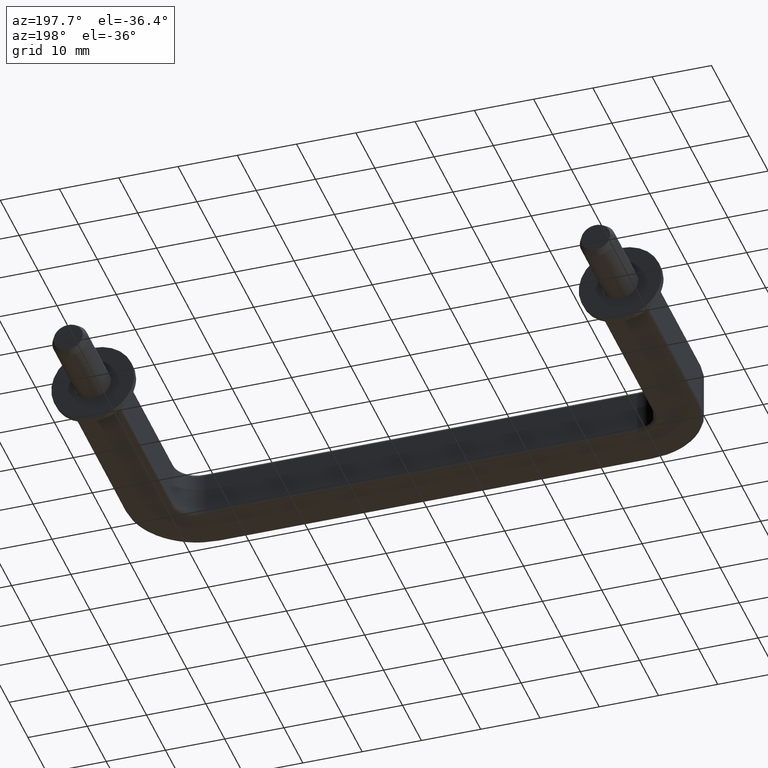
[diagram: clean part render]
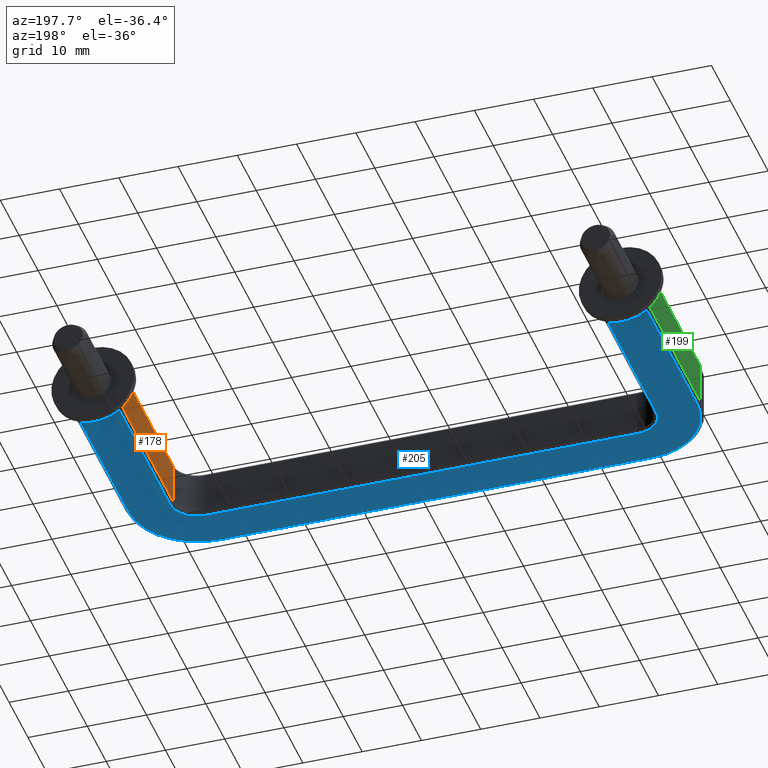
[diagram: same view with three faces highlighted in distinct colors, each labeled with its STEP entity id]
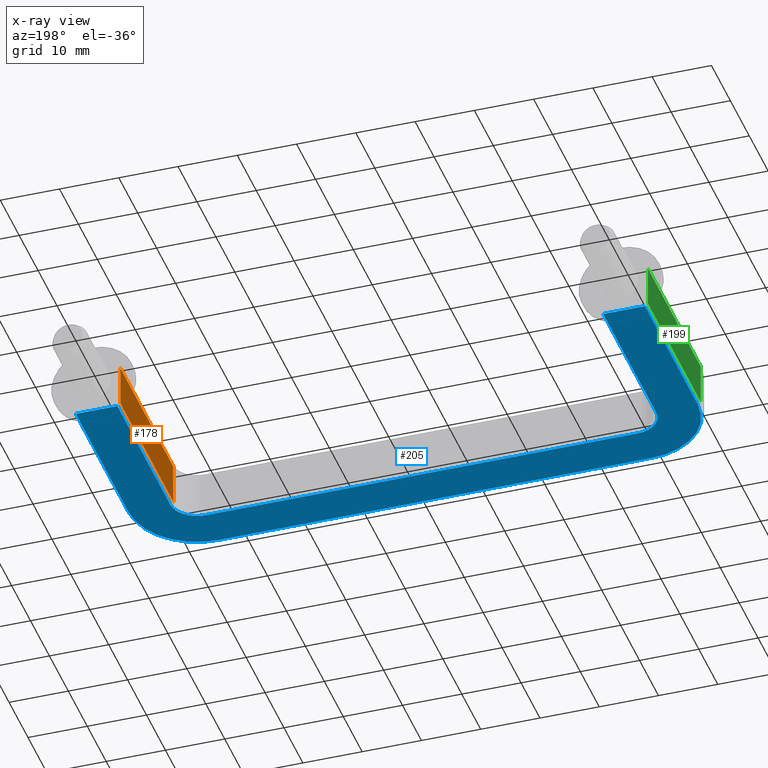
[diagram: x-ray of the same camera — body ghosted, the three highlighted faces saturated]
A machine part, auxiliary view with three faces highlighted in distinct colors.
The next image is the same camera in x-ray (body ghosted, the three faces saturated) — at least one of them is partly hidden behind the body in this view.
Their STEP definitions:

[orange] entity #178 — the highlighted planar face has unit normal (-1, 0, 0).
#178=ADVANCED_FACE('',(#328),#327,.T.);
#327=PLANE('',#769);
#328=FACE_OUTER_BOUND('',#770,.T.);
#766=CARTESIAN_POINT('',(4.05000000000E+01,4.20000000000E+00,1.22000000000E+01));
#767=DIRECTION('',(-1.00000000000E+00,0.00000000000E+00,0.00000000000E+00));
#768=DIRECTION('',(0.00000000000E+00,-1.00000000000E+00,0.00000000000E+00));
#769=AXIS2_PLACEMENT_3D('',#766,#767,#768);
#770=EDGE_LOOP('',(#1267,#1268,#1269,#1270));
#1267=ORIENTED_EDGE('',*,*,#1482,.T.);
#1268=ORIENTED_EDGE('',*,*,#1484,.F.);
#1269=ORIENTED_EDGE('',*,*,#1485,.F.);
#1270=ORIENTED_EDGE('',*,*,#1486,.T.);
#1482=EDGE_CURVE('',#1782,#1775,#1783,.T.);
#1484=EDGE_CURVE('',#1795,#1775,#1796,.T.);
#1485=EDGE_CURVE('',#1802,#1795,#1803,.T.);
#1486=EDGE_CURVE('',#1802,#1782,#1809,.T.);
#1775=VERTEX_POINT('',#2495);
#1782=VERTEX_POINT('',#2500);
#1783=LINE('',#2501,#2502);
#1795=VERTEX_POINT('',#2508);
#1796=LINE('',#2509,#2510);
#1802=VERTEX_POINT('',#2512);
#1803=LINE('',#2513,#2514);
#1809=LINE('',#2516,#2517);
#2495=CARTESIAN_POINT('',(4.05000000000E+01,3.50000000000E+00,1.50000000000E+01));
#2500=CARTESIAN_POINT('',(4.05000000000E+01,3.50000000000E+00,4.30000000000E+01));
#2501=CARTESIAN_POINT('',(4.05000000000E+01,3.50000000000E+00,4.30000000000E+01));
#2502=VECTOR('',#2503,2.80000000000E+01);
#2503=DIRECTION('',(0.00000000000E+00,0.00000000000E+00,-1.00000000000E+00));
#2508=CARTESIAN_POINT('',(4.05000000000E+01,-3.50000000000E+00,1.50000000000E+01));
#2509=CARTESIAN_POINT('',(4.05000000000E+01,-3.50000000000E+00,1.50000000000E+01));
#2510=VECTOR('',#2511,7.00000000000E+00);
#2511=DIRECTION('',(0.00000000000E+00,1.00000000000E+00,0.00000000000E+00));
#2512=CARTESIAN_POINT('',(4.05000000000E+01,-3.50000000000E+00,4.30000000000E+01));
#2513=CARTESIAN_POINT('',(4.05000000000E+01,-3.50000000000E+00,4.30000000000E+01));
#2514=VECTOR('',#2515,2.80000000000E+01);
#2515=DIRECTION('',(0.00000000000E+00,0.00000000000E+00,-1.00000000000E+00));
#2516=CARTESIAN_POINT('',(4.05000000000E+01,-3.50000000000E+00,4.30000000000E+01));
#2517=VECTOR('',#2518,7.00000000000E+00);
#2518=DIRECTION('',(0.00000000000E+00,1.00000000000E+00,0.00000000000E+00));

[blue] entity #205 — the highlighted planar face has unit normal (0, 0, -1).
#205=ADVANCED_FACE('',(#598),#597,.T.);
#597=PLANE('',#1152);
#598=FACE_OUTER_BOUND('',#1153,.T.);
#1149=CARTESIAN_POINT('',(-5.76000000000E+01,-4.00000000000E+00,1.10500000000E+01));
#1150=DIRECTION('',(0.00000000000E+00,-1.00000000000E+00,0.00000000000E+00));
#1151=DIRECTION('',(1.00000000000E+00,0.00000000000E+00,0.00000000000E+00));
#1152=AXIS2_PLACEMENT_3D('',#1149,#1150,#1151);
#1153=EDGE_LOOP('',(#1383,#1384,#1385,#1386,#1387,#1388,#1389,#1390,#1391,#1392,#1393,#1394));
#1383=ORIENTED_EDGE('',*,*,#1547,.T.);
#1384=ORIENTED_EDGE('',*,*,#1531,.T.);
#1385=ORIENTED_EDGE('',*,*,#1517,.T.);
#1386=ORIENTED_EDGE('',*,*,#1503,.T.);
#1387=ORIENTED_EDGE('',*,*,#1488,.T.);
#1388=ORIENTED_EDGE('',*,*,#1549,.F.);
#1389=ORIENTED_EDGE('',*,*,#1490,.F.);
#1390=ORIENTED_EDGE('',*,*,#1505,.F.);
#1391=ORIENTED_EDGE('',*,*,#1519,.F.);
#1392=ORIENTED_EDGE('',*,*,#1533,.F.);
#1393=ORIENTED_EDGE('',*,*,#1550,.F.);
#1394=ORIENTED_EDGE('',*,*,#1551,.T.);
#1488=EDGE_CURVE('',#1822,#1815,#1823,.T.);
#1490=EDGE_CURVE('',#1835,#1836,#1837,.T.);
#1503=EDGE_CURVE('',#1921,#1822,#1922,.T.);
#1505=EDGE_CURVE('',#1934,#1835,#1935,.T.);
#1517=EDGE_CURVE('',#2013,#1921,#2014,.T.);
#1519=EDGE_CURVE('',#2026,#1934,#2027,.T.);
#1531=EDGE_CURVE('',#2105,#2013,#2106,.T.);
#1533=EDGE_CURVE('',#2118,#2026,#2119,.T.);
#1547=EDGE_CURVE('',#2209,#2105,#2210,.T.);
#1549=EDGE_CURVE('',#1836,#1815,#2222,.T.);
#1550=EDGE_CURVE('',#2228,#2118,#2229,.T.);
#1551=EDGE_CURVE('',#2228,#2209,#2235,.T.);
#1815=VERTEX_POINT('',#2519);
#1822=VERTEX_POINT('',#2524);
#1823=LINE('',#2525,#2526);
#1835=VERTEX_POINT('',#2532);
#1836=VERTEX_POINT('',#2533);
#1837=LINE('',#2534,#2535);
#1921=VERTEX_POINT('',#2589);
#1922=CIRCLE('',#2593,4.50000000000E+00);
#1934=VERTEX_POINT('',#2598);
#1935=CIRCLE('',#2602,1.15000000000E+01);
#2013=VERTEX_POINT('',#2645);
#2014=LINE('',#2646,#2647);
#2026=VERTEX_POINT('',#2653);
#2027=LINE('',#2654,#2655);
#2105=VERTEX_POINT('',#2705);
#2106=CIRCLE('',#2709,4.50000000000E+00);
#2118=VERTEX_POINT('',#2714);
#2119=CIRCLE('',#2718,1.15000000000E+01);
#2209=VERTEX_POINT('',#2767);
#2210=LINE('',#2768,#2769);
#2222=LINE('',#2775,#2776);
#2228=VERTEX_POINT('',#2778);
#2229=LINE('',#2779,#2780);
#2235=LINE('',#2782,#2783);
#2519=CARTESIAN_POINT('',(4.10000000000E+01,-4.00000000000E+00,1.50000000000E+01));
#2524=CARTESIAN_POINT('',(4.10000000000E+01,-4.00000000000E+00,4.30000000000E+01));
#2525=CARTESIAN_POINT('',(4.10000000000E+01,-4.00000000000E+00,4.30000000000E+01));
#2526=VECTOR('',#2527,2.80000000000E+01);
#2527=DIRECTION('',(0.00000000000E+00,0.00000000000E+00,-1.00000000000E+00));
#2532=CARTESIAN_POINT('',(4.80000000000E+01,-4.00000000000E+00,4.30000000000E+01));
#2533=CARTESIAN_POINT('',(4.80000000000E+01,-4.00000000000E+00,1.50000000000E+01));
#2534=CARTESIAN_POINT('',(4.80000000000E+01,-4.00000000000E+00,4.30000000000E+01));
#2535=VECTOR('',#2536,2.80000000000E+01);
#2536=DIRECTION('',(0.00000000000E+00,0.00000000000E+00,-1.00000000000E+00));
#2589=CARTESIAN_POINT('',(3.65000000000E+01,-4.00000000000E+00,4.75000000000E+01));
#2590=CARTESIAN_POINT('',(3.65000000000E+01,-4.00000000000E+00,4.30000000000E+01));
#2591=DIRECTION('',(-2.16323849863E-15,1.00000000000E+00,3.94745964312E-16));
#2592=DIRECTION('',(-1.54740418010E-13,3.94745964311E-16,-1.00000000000E+00));
#2593=AXIS2_PLACEMENT_3D('',#2590,#2591,#2592);
#2598=CARTESIAN_POINT('',(3.65000000000E+01,-4.00000000000E+00,5.45000000000E+01));
#2599=CARTESIAN_POINT('',(3.65000000000E+01,-4.00000000000E+00,4.30000000000E+01));
#2600=DIRECTION('',(2.64867771291E-15,1.00000000000E+00,8.49561966670E-16));
#2601=DIRECTION('',(-6.17863248487E-14,8.49561966670E-16,-1.00000000000E+00));
#2602=AXIS2_PLACEMENT_3D('',#2599,#2600,#2601);
#2645=CARTESIAN_POINT('',(-3.65000000000E+01,-4.00000000000E+00,4.75000000000E+01));
#2646=CARTESIAN_POINT('',(-3.65000000000E+01,-4.00000000000E+00,4.75000000000E+01));
#2647=VECTOR('',#2648,7.30000000000E+01);
#2648=DIRECTION('',(1.00000000000E+00,2.73753622510E-16,0.00000000000E+00));
#2653=CARTESIAN_POINT('',(-3.65000000000E+01,-4.00000000000E+00,5.45000000000E+01));
#2654=CARTESIAN_POINT('',(-3.65000000000E+01,-4.00000000000E+00,5.45000000000E+01));
#2655=VECTOR('',#2656,7.30000000000E+01);
#2656=DIRECTION('',(1.00000000000E+00,2.73753622510E-16,0.00000000000E+00));
#2705=CARTESIAN_POINT('',(-4.10000000000E+01,-4.00000000000E+00,4.30000000000E+01));
#2706=CARTESIAN_POINT('',(-3.65000000000E+01,-4.00000000000E+00,4.30000000000E+01));
#2707=DIRECTION('',(-1.21202920503E-29,1.00000000000E+00,-6.97818870526E-17));
#2708=DIRECTION('',(1.00000000000E+00,-0.00000000000E+00,-1.73688224297E-13));
#2709=AXIS2_PLACEMENT_3D('',#2706,#2707,#2708);
#2714=CARTESIAN_POINT('',(-4.80000000000E+01,-4.00000000000E+00,4.30000000000E+01));
#2715=CARTESIAN_POINT('',(-3.65000000000E+01,-4.00000000000E+00,4.30000000000E+01));
#2716=DIRECTION('',(-3.86164530305E-17,1.00000000000E+00,-8.46484629899E-16));
#2717=DIRECTION('',(1.00000000000E+00,3.86164530304E-17,-5.86970086063E-14));
#2718=AXIS2_PLACEMENT_3D('',#2715,#2716,#2717);
#2767=CARTESIAN_POINT('',(-4.10000000000E+01,-4.00000000000E+00,1.50000000000E+01));
#2768=CARTESIAN_POINT('',(-4.10000000000E+01,-4.00000000000E+00,1.50000000000E+01));
#2769=VECTOR('',#2770,2.80000000000E+01);
#2770=DIRECTION('',(0.00000000000E+00,0.00000000000E+00,1.00000000000E+00));
#2775=CARTESIAN_POINT('',(4.80000000000E+01,-4.00000000000E+00,1.50000000000E+01));
#2776=VECTOR('',#2777,7.00000000000E+00);
#2777=DIRECTION('',(-1.00000000000E+00,0.00000000000E+00,0.00000000000E+00));
#2778=CARTESIAN_POINT('',(-4.80000000000E+01,-4.00000000000E+00,1.50000000000E+01));
#2779=CARTESIAN_POINT('',(-4.80000000000E+01,-4.00000000000E+00,1.50000000000E+01));
#2780=VECTOR('',#2781,2.80000000000E+01);
#2781=DIRECTION('',(0.00000000000E+00,0.00000000000E+00,1.00000000000E+00));
#2782=CARTESIAN_POINT('',(-4.80000000000E+01,-4.00000000000E+00,1.50000000000E+01));
#2783=VECTOR('',#2784,7.00000000000E+00);
#2784=DIRECTION('',(1.00000000000E+00,0.00000000000E+00,0.00000000000E+00));

[green] entity #199 — the highlighted planar face has unit normal (-1, 0, 0).
#199=ADVANCED_FACE('',(#538),#537,.T.);
#537=PLANE('',#1122);
#538=FACE_OUTER_BOUND('',#1123,.T.);
#1119=CARTESIAN_POINT('',(-4.85000000000E+01,-4.20000000000E+00,1.22000000000E+01));
#1120=DIRECTION('',(-1.00000000000E+00,0.00000000000E+00,0.00000000000E+00));
#1121=DIRECTION('',(0.00000000000E+00,0.00000000000E+00,1.00000000000E+00));
#1122=AXIS2_PLACEMENT_3D('',#1119,#1120,#1121);
#1123=EDGE_LOOP('',(#1351,#1352,#1353,#1354));
#1351=ORIENTED_EDGE('',*,*,#1522,.F.);
#1352=ORIENTED_EDGE('',*,*,#1535,.F.);
#1353=ORIENTED_EDGE('',*,*,#1536,.T.);
#1354=ORIENTED_EDGE('',*,*,#1537,.T.);
#1522=EDGE_CURVE('',#2039,#2046,#2047,.T.);
#1535=EDGE_CURVE('',#2131,#2039,#2132,.T.);
#1536=EDGE_CURVE('',#2131,#2138,#2139,.T.);
#1537=EDGE_CURVE('',#2138,#2046,#2145,.T.);
#2039=VERTEX_POINT('',#2661);
#2046=VERTEX_POINT('',#2666);
#2047=LINE('',#2667,#2668);
#2131=VERTEX_POINT('',#2723);
#2132=LINE('',#2724,#2725);
#2138=VERTEX_POINT('',#2727);
#2139=LINE('',#2728,#2729);
#2145=LINE('',#2731,#2732);
#2661=CARTESIAN_POINT('',(-4.85000000000E+01,3.50000000000E+00,4.30000000000E+01));
#2666=CARTESIAN_POINT('',(-4.85000000000E+01,-3.50000000000E+00,4.30000000000E+01));
#2667=CARTESIAN_POINT('',(-4.85000000000E+01,3.50000000000E+00,4.30000000000E+01));
#2668=VECTOR('',#2669,7.00000000000E+00);
#2669=DIRECTION('',(0.00000000000E+00,-1.00000000000E+00,0.00000000000E+00));
#2723=CARTESIAN_POINT('',(-4.85000000000E+01,3.50000000000E+00,1.50000000000E+01));
#2724=CARTESIAN_POINT('',(-4.85000000000E+01,3.50000000000E+00,1.50000000000E+01));
#2725=VECTOR('',#2726,2.80000000000E+01);
#2726=DIRECTION('',(0.00000000000E+00,0.00000000000E+00,1.00000000000E+00));
#2727=CARTESIAN_POINT('',(-4.85000000000E+01,-3.50000000000E+00,1.50000000000E+01));
#2728=CARTESIAN_POINT('',(-4.85000000000E+01,3.50000000000E+00,1.50000000000E+01));
#2729=VECTOR('',#2730,7.00000000000E+00);
#2730=DIRECTION('',(0.00000000000E+00,-1.00000000000E+00,0.00000000000E+00));
#2731=CARTESIAN_POINT('',(-4.85000000000E+01,-3.50000000000E+00,1.50000000000E+01));
#2732=VECTOR('',#2733,2.80000000000E+01);
#2733=DIRECTION('',(0.00000000000E+00,0.00000000000E+00,1.00000000000E+00));